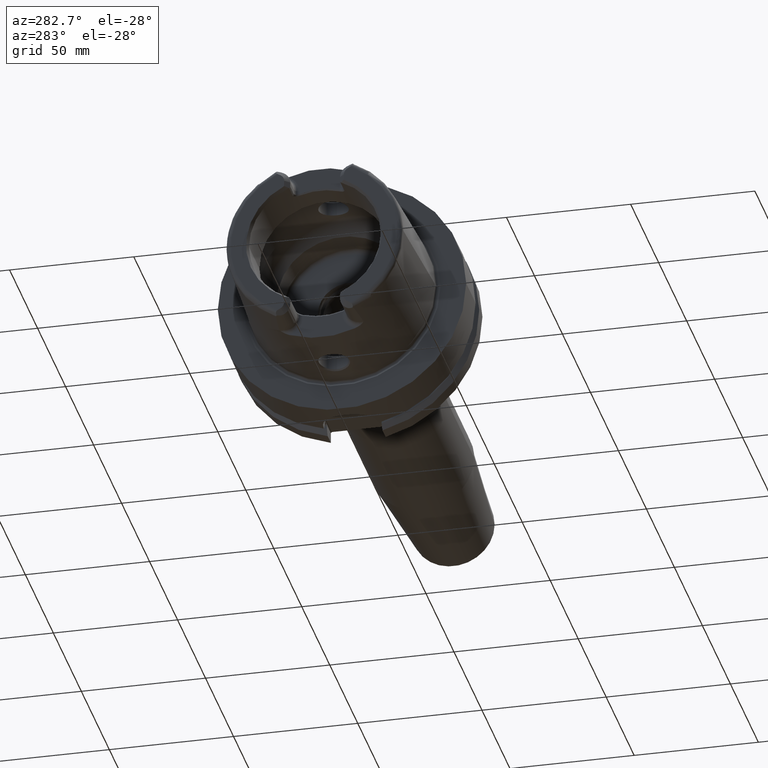
[diagram: clean part render]
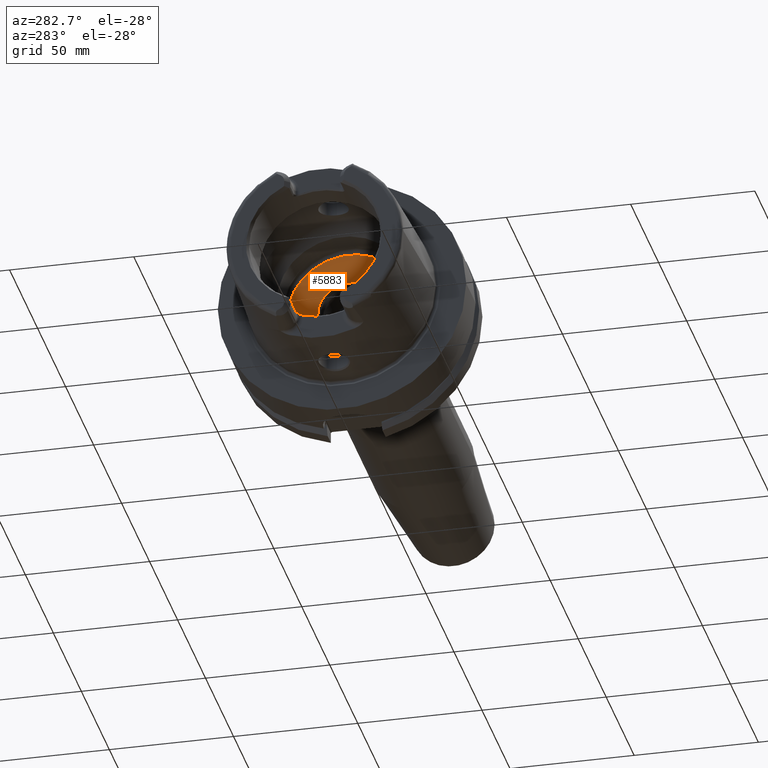
[diagram: same view with one face highlighted and labeled with its STEP entity id]
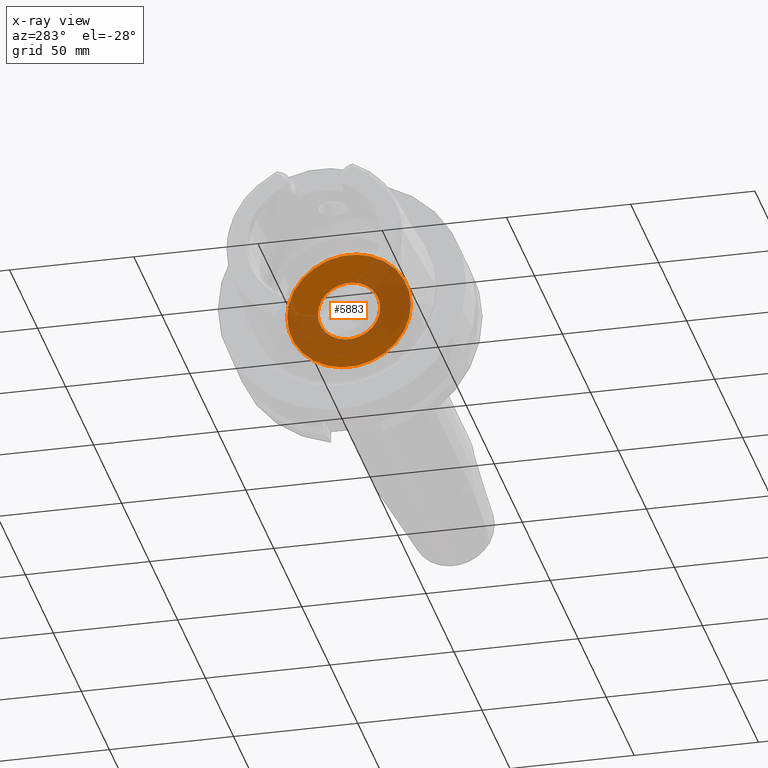
[diagram: x-ray of the same camera — body ghosted, the highlighted face saturated]
A machine part, auxiliary view. The second image highlights one B-rep face of the part: STEP entity #5883.
The next image is the same camera in x-ray: the body ghosted, the highlighted face saturated — about 57% of this face is hidden behind the body in this view.
In plain terms, the highlighted planar face has unit normal (1, 0, 0).
Its self-contained STEP definition (entity closure, byte-faithful):
#2280=CARTESIAN_POINT('',(1.25E1,0.E0,0.E0));
#2281=DIRECTION('',(1.E0,0.E0,0.E0));
#2282=DIRECTION('',(0.E0,1.E0,0.E0));
#2283=AXIS2_PLACEMENT_3D('',#2280,#2281,#2282);
#2290=CARTESIAN_POINT('',(1.25E1,0.E0,0.E0));
#2291=DIRECTION('',(-1.E0,0.E0,0.E0));
#2292=DIRECTION('',(0.E0,1.E0,0.E0));
#2293=AXIS2_PLACEMENT_3D('',#2290,#2291,#2292);
#2300=CARTESIAN_POINT('',(1.25E1,0.E0,0.E0));
#2301=DIRECTION('',(1.E0,0.E0,0.E0));
#2302=DIRECTION('',(0.E0,-1.E0,0.E0));
#2303=AXIS2_PLACEMENT_3D('',#2300,#2301,#2302);
#2305=CARTESIAN_POINT('',(1.25E1,0.E0,0.E0));
#2306=DIRECTION('',(1.E0,0.E0,0.E0));
#2307=DIRECTION('',(0.E0,1.E0,0.E0));
#2308=AXIS2_PLACEMENT_3D('',#2305,#2306,#2307);
#2745=CARTESIAN_POINT('',(1.25E1,2.49E1,0.E0));
#2747=VERTEX_POINT('',#2745);
#2749=CARTESIAN_POINT('',(1.25E1,-2.49E1,0.E0));
#2751=VERTEX_POINT('',#2749);
#3133=CARTESIAN_POINT('',(1.25E1,-1.25665E1,0.E0));
#3134=CARTESIAN_POINT('',(1.25E1,1.25665E1,0.E0));
#3135=VERTEX_POINT('',#3133);
#3136=VERTEX_POINT('',#3134);
#5868=CARTESIAN_POINT('',(1.25E1,0.E0,0.E0));
#5869=DIRECTION('',(1.E0,0.E0,0.E0));
#5870=DIRECTION('',(0.E0,-1.E0,0.E0));
#5871=AXIS2_PLACEMENT_3D('',#5868,#5869,#5870);
#5872=PLANE('',#5871);
#5873=ORIENTED_EDGE('',*,*,#5850,.T.);
#5874=ORIENTED_EDGE('',*,*,#5861,.F.);
#5875=EDGE_LOOP('',(#5873,#5874));
#5876=FACE_OUTER_BOUND('',#5875,.F.);
#5878=ORIENTED_EDGE('',*,*,#5877,.F.);
#5880=ORIENTED_EDGE('',*,*,#5879,.F.);
#5881=EDGE_LOOP('',(#5878,#5880));
#5882=FACE_BOUND('',#5881,.F.);
#5883=ADVANCED_FACE('',(#5876,#5882),#5872,.F.);
#2284=CIRCLE('',#2283,2.49E1);
#2294=CIRCLE('',#2293,2.49E1);
#2304=CIRCLE('',#2303,1.25665E1);
#2309=CIRCLE('',#2308,1.25665E1);
#5850=EDGE_CURVE('',#2747,#2751,#2284,.T.);
#5861=EDGE_CURVE('',#2747,#2751,#2294,.T.);
#5877=EDGE_CURVE('',#3135,#3136,#2304,.T.);
#5879=EDGE_CURVE('',#3136,#3135,#2309,.T.);